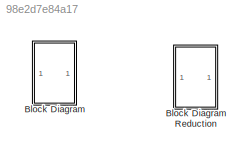
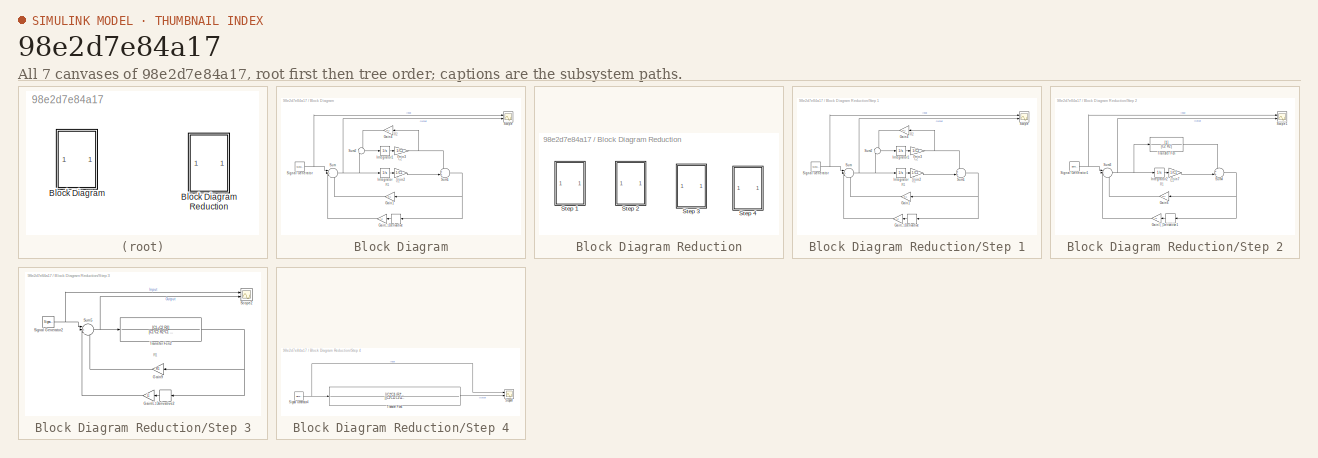
[diagram: thumbnail index - all 7 canvases of the model, root first then tree order]
MODEL slx_98e2d7e84a17
KIND model
CONFIG AbsTol = auto
CONFIG EnableMultiTasking = off
CONFIG FixedStep = auto
CONFIG MaxStep = auto
CONFIG MinStep = auto
CONFIG RelTol = 1e-3
CONFIG SampleTimeConstraint = Unconstrained
CONFIG Solver = VariableStepAuto
CONFIG SolverName = VariableStepAuto
CONFIG StartTime = 0.0
CONFIG StopTime = 10.0
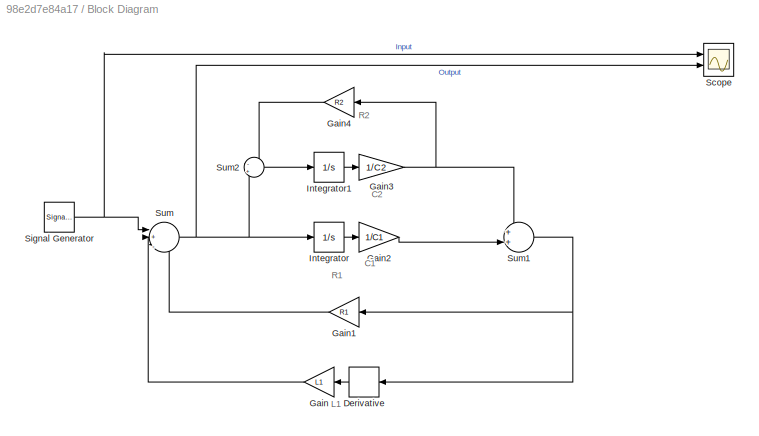
BLOCK [SubSystem] Block Diagram
  Ports = []
  RequestExecContextInheritance = off
  Variant = off
BLOCK [SubSystem] Block Diagram Reduction
  Ports = []
  RequestExecContextInheritance = off
  Variant = off
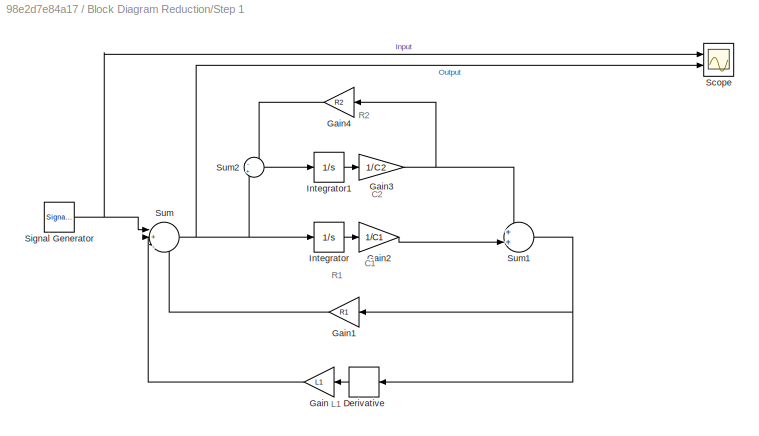
BLOCK [SubSystem] Block Diagram Reduction/Step 1
  Ports = []
  RequestExecContextInheritance = off
  Variant = off
BLOCK [Derivative] Block Diagram Reduction/Step 1/Derivative
  CoefficientInTFapproximation = 0
BLOCK [Gain] Block Diagram Reduction/Step 1/Gain
  Gain = L1
  OutDataTypeStr = Inherit: Inherit via internal rule
  ParamDataTypeStr = Inherit: Inherit via internal rule
  SaturateOnIntegerOverflow = off
BLOCK [Gain] Block Diagram Reduction/Step 1/Gain1
  Gain = R1
  OutDataTypeStr = Inherit: Inherit via internal rule
  ParamDataTypeStr = Inherit: Inherit via internal rule
  SaturateOnIntegerOverflow = off
BLOCK [Gain] Block Diagram Reduction/Step 1/Gain2
  Gain = 1/C1
  OutDataTypeStr = Inherit: Inherit via internal rule
  ParamDataTypeStr = Inherit: Inherit via internal rule
  SaturateOnIntegerOverflow = off
BLOCK [Gain] Block Diagram Reduction/Step 1/Gain3
  Gain = 1/C2
  OutDataTypeStr = Inherit: Inherit via internal rule
  ParamDataTypeStr = Inherit: Inherit via internal rule
  SaturateOnIntegerOverflow = off
BLOCK [Gain] Block Diagram Reduction/Step 1/Gain4
  Gain = R2
  OutDataTypeStr = Inherit: Inherit via internal rule
  ParamDataTypeStr = Inherit: Inherit via internal rule
  SaturateOnIntegerOverflow = off
BLOCK [Integrator] Block Diagram Reduction/Step 1/Integrator
  Ports = [1, 1]
BLOCK [Integrator] Block Diagram Reduction/Step 1/Integrator1
  Ports = [1, 1]
BLOCK [Scope] Block Diagram Reduction/Step 1/Scope
  NumInputPorts = 2
  Ports = [2]
  ScopeSpecificationString = Simulink.scopes.TimeScopeBlockCfg('CurrentConfiguration', extmgr.ConfigurationSet(extmgr.Configuration('Core','General UI',true),extmgr.Configuration('Core','Source UI',true),extmgr.Configuration('Sources','WiredSimulink',true),extmgr.Configuration('Visuals','Time Domain',true),extmgr.Configuration('Tools','Plot Navigation',true),extmgr.Configuration('Tools','Measurements',true)),'Version','2017a'...<+1ch>
BLOCK [SignalGenerator] Block Diagram Reduction/Step 1/Signal Generator
  Ports = [0, 1]
  Units = rad/sec
BLOCK [Sum] Block Diagram Reduction/Step 1/Sum
  IconShape = round
  InputSameDT = off
  Inputs = |+|--
  OutDataTypeStr = Inherit: Inherit via internal rule
  Ports = [3, 1]
  SaturateOnIntegerOverflow = off
BLOCK [Sum] Block Diagram Reduction/Step 1/Sum1
  IconShape = round
  InputSameDT = off
  Inputs = ++|
  OutDataTypeStr = Inherit: Inherit via internal rule
  Ports = [2, 1]
  SaturateOnIntegerOverflow = off
BLOCK [Sum] Block Diagram Reduction/Step 1/Sum2
  IconShape = round
  InputSameDT = off
  Inputs = -+
  OutDataTypeStr = Inherit: Inherit via internal rule
  Ports = [2, 1]
  SaturateOnIntegerOverflow = off
BLOCK [SubSystem] Block Diagram Reduction/Step 2
  Ports = []
  RequestExecContextInheritance = off
  Variant = off
BLOCK [Derivative] Block Diagram Reduction/Step 2/Derivative1
  CoefficientInTFapproximation = 0
BLOCK [Gain] Block Diagram Reduction/Step 2/Gain5
  Gain = L1
  OutDataTypeStr = Inherit: Inherit via internal rule
  ParamDataTypeStr = Inherit: Inherit via internal rule
  SaturateOnIntegerOverflow = off
BLOCK [Gain] Block Diagram Reduction/Step 2/Gain6
  Gain = R1
  OutDataTypeStr = Inherit: Inherit via internal rule
  ParamDataTypeStr = Inherit: Inherit via internal rule
  SaturateOnIntegerOverflow = off
BLOCK [Gain] Block Diagram Reduction/Step 2/Gain7
  Gain = 1/C1
  OutDataTypeStr = Inherit: Inherit via internal rule
  ParamDataTypeStr = Inherit: Inherit via internal rule
  SaturateOnIntegerOverflow = off
BLOCK [Integrator] Block Diagram Reduction/Step 2/Integrator2
  Ports = [1, 1]
BLOCK [Scope] Block Diagram Reduction/Step 2/Scope1
  NumInputPorts = 2
  Ports = [2]
  ScopeSpecificationString = Simulink.scopes.TimeScopeBlockCfg('CurrentConfiguration', extmgr.ConfigurationSet(extmgr.Configuration('Core','General UI',true),extmgr.Configuration('Core','Source UI',true),extmgr.Configuration('Sources','WiredSimulink',true,'DataLoggingVariableName','ScopeData1'),extmgr.Configuration('Visuals','Time Domain',true),extmgr.Configuration('Tools','Plot Navigation',true),extmgr.Configuration('Tools',...<+40ch>
BLOCK [SignalGenerator] Block Diagram Reduction/Step 2/Signal Generator1
  Ports = [0, 1]
  Units = rad/sec
BLOCK [Sum] Block Diagram Reduction/Step 2/Sum3
  IconShape = round
  InputSameDT = off
  Inputs = |+|--
  OutDataTypeStr = Inherit: Inherit via internal rule
  Ports = [3, 1]
  SaturateOnIntegerOverflow = off
BLOCK [Sum] Block Diagram Reduction/Step 2/Sum4
  IconShape = round
  InputSameDT = off
  Inputs = ++|
  OutDataTypeStr = Inherit: Inherit via internal rule
  Ports = [2, 1]
  SaturateOnIntegerOverflow = off
BLOCK [TransferFcn] Block Diagram Reduction/Step 2/Transfer Fcn
  Denominator = [C2 R2]
BLOCK [SubSystem] Block Diagram Reduction/Step 3
  Ports = []
  RequestExecContextInheritance = off
  Variant = off
BLOCK [Derivative] Block Diagram Reduction/Step 3/Derivative2
  CoefficientInTFapproximation = 0
BLOCK [Gain] Block Diagram Reduction/Step 3/Gain8
  Gain = L1
  OutDataTypeStr = Inherit: Inherit via internal rule
  ParamDataTypeStr = Inherit: Inherit via internal rule
  SaturateOnIntegerOverflow = off
BLOCK [Gain] Block Diagram Reduction/Step 3/Gain9
  Gain = R1
  OutDataTypeStr = Inherit: Inherit via internal rule
  ParamDataTypeStr = Inherit: Inherit via internal rule
  SaturateOnIntegerOverflow = off
BLOCK [Scope] Block Diagram Reduction/Step 3/Scope2
  NumInputPorts = 2
  Ports = [2]
  ScopeSpecificationString = Simulink.scopes.TimeScopeBlockCfg('CurrentConfiguration', extmgr.ConfigurationSet(extmgr.Configuration('Core','General UI',true),extmgr.Configuration('Core','Source UI',true),extmgr.Configuration('Sources','WiredSimulink',true,'DataLoggingVariableName','ScopeData2'),extmgr.Configuration('Visuals','Time Domain',true),extmgr.Configuration('Tools','Plot Navigation',true),extmgr.Configuration('Tools',...<+40ch>
BLOCK [SignalGenerator] Block Diagram Reduction/Step 3/Signal Generator2
  Ports = [0, 1]
  Units = rad/sec
BLOCK [Sum] Block Diagram Reduction/Step 3/Sum5
  IconShape = round
  InputSameDT = off
  Inputs = |+|--
  OutDataTypeStr = Inherit: Inherit via internal rule
  Ports = [3, 1]
  SaturateOnIntegerOverflow = off
BLOCK [TransferFcn] Block Diagram Reduction/Step 3/Transfer Fcn2
  Denominator = [C1*C2 R2*C1 0]
  Numerator = [C1+C2 R2]
BLOCK [SubSystem] Block Diagram Reduction/Step 4
  Ports = []
  RequestExecContextInheritance = off
  Variant = off
BLOCK [Scope] Block Diagram Reduction/Step 4/Scope4
  NumInputPorts = 2
  Ports = [2]
  ScopeSpecificationString = Simulink.scopes.TimeScopeBlockCfg('CurrentConfiguration', extmgr.ConfigurationSet(extmgr.Configuration('Core','General UI',true),extmgr.Configuration('Core','Source UI',true),extmgr.Configuration('Sources','WiredSimulink',true,'DataLoggingVariableName','ScopeData4'),extmgr.Configuration('Visuals','Time Domain',true),extmgr.Configuration('Tools','Plot Navigation',true),extmgr.Configuration('Tools',...<+40ch>
BLOCK [SignalGenerator] Block Diagram Reduction/Step 4/Signal Generator4
  Ports = [0, 1]
  Units = rad/sec
BLOCK [TransferFcn] Block Diagram Reduction/Step 4/Transfer Fcn6
  Denominator = [(C2*C1+C1*L1+C2*L1) (R2*C1+R1*C1+R2*L1+C2*R1) (R2*R1)]
  Numerator = [(C1*C2) (R2*C1) 0]
BLOCK [Derivative] Block Diagram/Derivative
  CoefficientInTFapproximation = 0
BLOCK [Gain] Block Diagram/Gain
  Gain = L1
  OutDataTypeStr = Inherit: Inherit via internal rule
  ParamDataTypeStr = Inherit: Inherit via internal rule
  SaturateOnIntegerOverflow = off
BLOCK [Gain] Block Diagram/Gain1
  Gain = R1
  OutDataTypeStr = Inherit: Inherit via internal rule
  ParamDataTypeStr = Inherit: Inherit via internal rule
  SaturateOnIntegerOverflow = off
BLOCK [Gain] Block Diagram/Gain2
  Gain = 1/C1
  OutDataTypeStr = Inherit: Inherit via internal rule
  ParamDataTypeStr = Inherit: Inherit via internal rule
  SaturateOnIntegerOverflow = off
BLOCK [Gain] Block Diagram/Gain3
  Gain = 1/C2
  OutDataTypeStr = Inherit: Inherit via internal rule
  ParamDataTypeStr = Inherit: Inherit via internal rule
  SaturateOnIntegerOverflow = off
BLOCK [Gain] Block Diagram/Gain4
  Gain = R2
  OutDataTypeStr = Inherit: Inherit via internal rule
  ParamDataTypeStr = Inherit: Inherit via internal rule
  SaturateOnIntegerOverflow = off
BLOCK [Integrator] Block Diagram/Integrator
  Ports = [1, 1]
BLOCK [Integrator] Block Diagram/Integrator1
  Ports = [1, 1]
BLOCK [Scope] Block Diagram/Scope
  NumInputPorts = 2
  Ports = [2]
  ScopeSpecificationString = Simulink.scopes.TimeScopeBlockCfg('CurrentConfiguration', extmgr.ConfigurationSet(extmgr.Configuration('Core','General UI',true),extmgr.Configuration('Core','Source UI',true),extmgr.Configuration('Sources','WiredSimulink',true),extmgr.Configuration('Visuals','Time Domain',true,'SerializedDisplays',{struct('MinYLimReal','-1.24996','MaxYLimReal','1.24996','YLabelReal','','MinYLimMag','0.00000','MaxY...<+1363ch>
BLOCK [SignalGenerator] Block Diagram/Signal Generator
  Ports = [0, 1]
  Units = rad/sec
BLOCK [Sum] Block Diagram/Sum
  IconShape = round
  InputSameDT = off
  Inputs = |+|--
  OutDataTypeStr = Inherit: Inherit via internal rule
  Ports = [3, 1]
  SaturateOnIntegerOverflow = off
BLOCK [Sum] Block Diagram/Sum1
  IconShape = round
  InputSameDT = off
  Inputs = ++|
  OutDataTypeStr = Inherit: Inherit via internal rule
  Ports = [2, 1]
  SaturateOnIntegerOverflow = off
BLOCK [Sum] Block Diagram/Sum2
  IconShape = round
  InputSameDT = off
  Inputs = -+
  OutDataTypeStr = Inherit: Inherit via internal rule
  Ports = [2, 1]
  SaturateOnIntegerOverflow = off
ANNOTATION Block Diagram: C1
ANNOTATION Block Diagram: C2
ANNOTATION Block Diagram: L1
ANNOTATION Block Diagram: R1
ANNOTATION Block Diagram: R2
ANNOTATION Block Diagram Reduction/Step 1: C1
ANNOTATION Block Diagram Reduction/Step 1: C2
ANNOTATION Block Diagram Reduction/Step 1: L1
ANNOTATION Block Diagram Reduction/Step 1: R1
ANNOTATION Block Diagram Reduction/Step 1: R2
ANNOTATION Block Diagram Reduction/Step 2: C1
ANNOTATION Block Diagram Reduction/Step 2: L1
ANNOTATION Block Diagram Reduction/Step 2: R1
ANNOTATION Block Diagram Reduction/Step 3: L1
ANNOTATION Block Diagram Reduction/Step 3: R1
LINE Block Diagram Reduction/Step 1/Derivative:1 -> Block Diagram Reduction/Step 1/Gain:1
LINE Block Diagram Reduction/Step 1/Gain1:1 -> Block Diagram Reduction/Step 1/Sum:3
LINE Block Diagram Reduction/Step 1/Gain2:1 -> Block Diagram Reduction/Step 1/Sum1:2
NET Block Diagram Reduction/Step 1/Gain3:1 -> Block Diagram Reduction/Step 1/Gain4:1, Block Diagram Reduction/Step 1/Sum1:1
LINE Block Diagram Reduction/Step 1/Gain4:1 -> Block Diagram Reduction/Step 1/Sum2:1
LINE Block Diagram Reduction/Step 1/Gain:1 -> Block Diagram Reduction/Step 1/Sum:2
LINE Block Diagram Reduction/Step 1/Integrator1:1 -> Block Diagram Reduction/Step 1/Gain3:1
LINE Block Diagram Reduction/Step 1/Integrator:1 -> Block Diagram Reduction/Step 1/Gain2:1
NET Block Diagram Reduction/Step 1/Signal Generator:1 -> Block Diagram Reduction/Step 1/Scope:1, Block Diagram Reduction/Step 1/Sum:1
NET Block Diagram Reduction/Step 1/Sum1:1 -> Block Diagram Reduction/Step 1/Derivative:1, Block Diagram Reduction/Step 1/Gain1:1
LINE Block Diagram Reduction/Step 1/Sum2:1 -> Block Diagram Reduction/Step 1/Integrator1:1
NET Block Diagram Reduction/Step 1/Sum:1 -> Block Diagram Reduction/Step 1/Integrator:1, Block Diagram Reduction/Step 1/Scope:2, Block Diagram Reduction/Step 1/Sum2:2
LINE Block Diagram Reduction/Step 2/Derivative1:1 -> Block Diagram Reduction/Step 2/Gain5:1
LINE Block Diagram Reduction/Step 2/Gain5:1 -> Block Diagram Reduction/Step 2/Sum3:2
LINE Block Diagram Reduction/Step 2/Gain6:1 -> Block Diagram Reduction/Step 2/Sum3:3
LINE Block Diagram Reduction/Step 2/Gain7:1 -> Block Diagram Reduction/Step 2/Sum4:2
LINE Block Diagram Reduction/Step 2/Integrator2:1 -> Block Diagram Reduction/Step 2/Gain7:1
NET Block Diagram Reduction/Step 2/Signal Generator1:1 -> Block Diagram Reduction/Step 2/Scope1:1, Block Diagram Reduction/Step 2/Sum3:1
NET Block Diagram Reduction/Step 2/Sum3:1 -> Block Diagram Reduction/Step 2/Integrator2:1, Block Diagram Reduction/Step 2/Scope1:2, Block Diagram Reduction/Step 2/Transfer Fcn:1
NET Block Diagram Reduction/Step 2/Sum4:1 -> Block Diagram Reduction/Step 2/Derivative1:1, Block Diagram Reduction/Step 2/Gain6:1
LINE Block Diagram Reduction/Step 2/Transfer Fcn:1 -> Block Diagram Reduction/Step 2/Sum4:1
LINE Block Diagram Reduction/Step 3/Derivative2:1 -> Block Diagram Reduction/Step 3/Gain8:1
LINE Block Diagram Reduction/Step 3/Gain8:1 -> Block Diagram Reduction/Step 3/Sum5:2
LINE Block Diagram Reduction/Step 3/Gain9:1 -> Block Diagram Reduction/Step 3/Sum5:3
NET Block Diagram Reduction/Step 3/Signal Generator2:1 -> Block Diagram Reduction/Step 3/Scope2:1, Block Diagram Reduction/Step 3/Sum5:1
NET Block Diagram Reduction/Step 3/Sum5:1 -> Block Diagram Reduction/Step 3/Scope2:2, Block Diagram Reduction/Step 3/Transfer Fcn2:1
NET Block Diagram Reduction/Step 3/Transfer Fcn2:1 -> Block Diagram Reduction/Step 3/Derivative2:1, Block Diagram Reduction/Step 3/Gain9:1
NET Block Diagram Reduction/Step 4/Signal Generator4:1 -> Block Diagram Reduction/Step 4/Scope4:1, Block Diagram Reduction/Step 4/Transfer Fcn6:1
LINE Block Diagram Reduction/Step 4/Transfer Fcn6:1 -> Block Diagram Reduction/Step 4/Scope4:2
LINE Block Diagram/Derivative:1 -> Block Diagram/Gain:1
LINE Block Diagram/Gain1:1 -> Block Diagram/Sum:3
LINE Block Diagram/Gain2:1 -> Block Diagram/Sum1:2
NET Block Diagram/Gain3:1 -> Block Diagram/Gain4:1, Block Diagram/Sum1:1
LINE Block Diagram/Gain4:1 -> Block Diagram/Sum2:1
LINE Block Diagram/Gain:1 -> Block Diagram/Sum:2
LINE Block Diagram/Integrator1:1 -> Block Diagram/Gain3:1
LINE Block Diagram/Integrator:1 -> Block Diagram/Gain2:1
NET Block Diagram/Signal Generator:1 -> Block Diagram/Scope:1, Block Diagram/Sum:1
NET Block Diagram/Sum1:1 -> Block Diagram/Derivative:1, Block Diagram/Gain1:1
LINE Block Diagram/Sum2:1 -> Block Diagram/Integrator1:1
NET Block Diagram/Sum:1 -> Block Diagram/Integrator:1, Block Diagram/Scope:2, Block Diagram/Sum2:2
note: NET lines group one-source signal fan-out (src -> all destinations, sorted); 1:1 wires keep LINE
